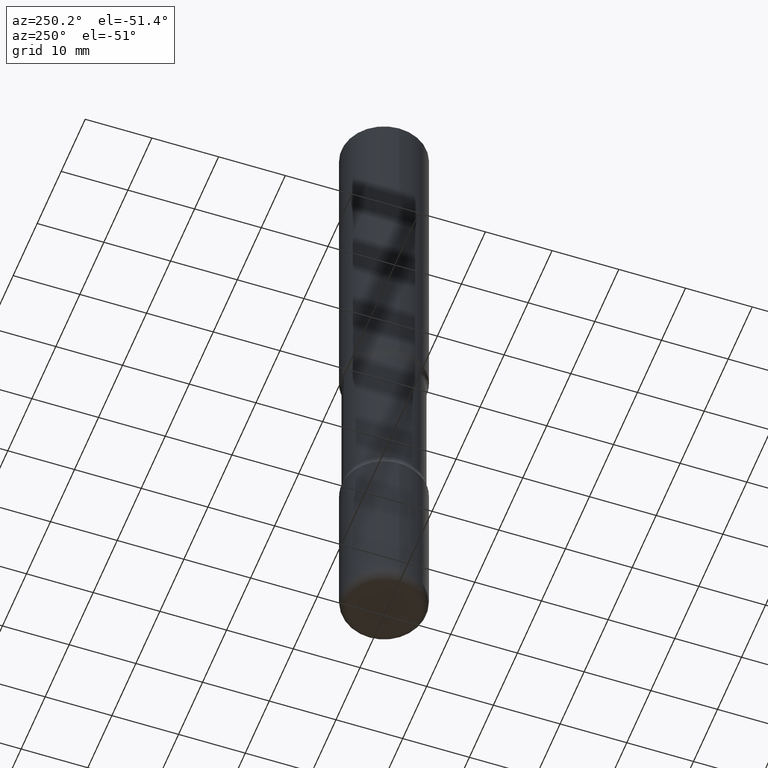
[diagram: clean part render]
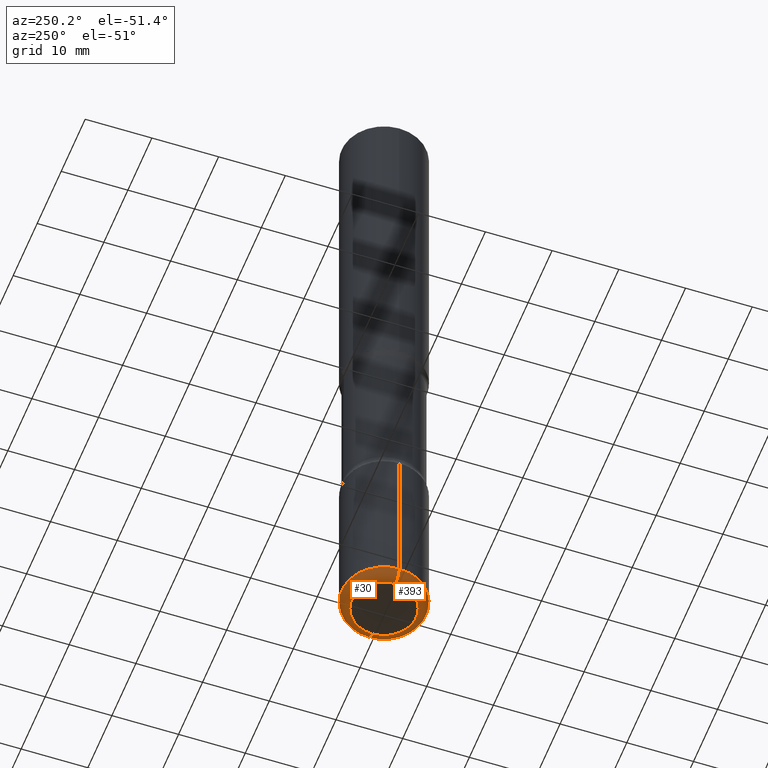
[diagram: same view with one multi-face feature highlighted, each face labeled with its STEP entity id]
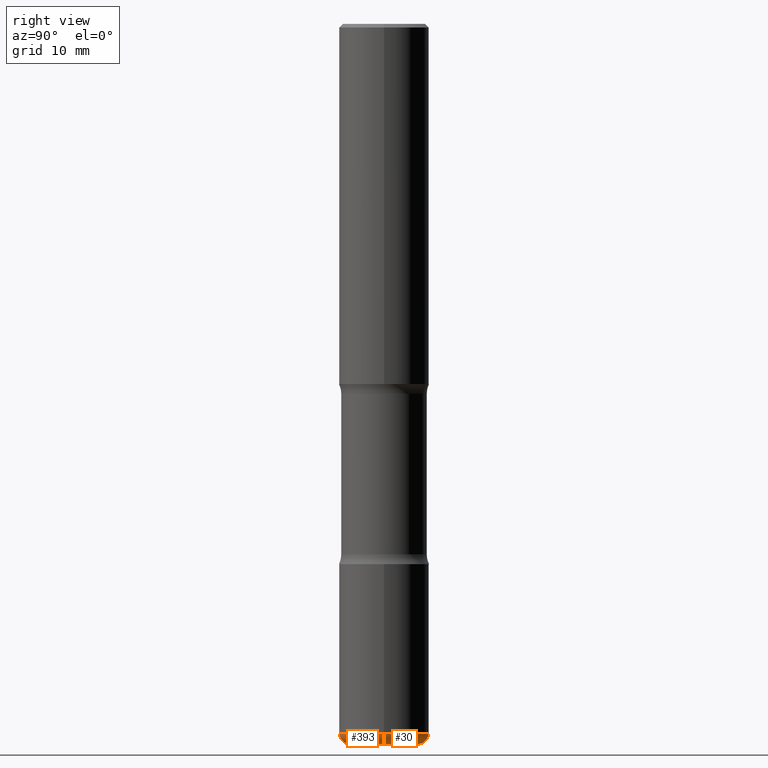
[diagram: same view with one multi-face feature highlighted, each face labeled with its STEP entity id]
A machine part, auxiliary view. The highlighted faces form ONE feature: a constant-radius fillet chain: 2 tangent blend faces with common blend radius 1.524 mm. The faces share edges in the B-rep.
A second angle (right view) of the same feature is appended — it is thin or edge-on in the first view.
Their STEP definitions:
[1] entity #30 (Torus):
#5 = EDGE_CURVE ( 'NONE', #344, #221, #487, .T. ) ;
#11 = ORIENTED_EDGE ( 'NONE', *, *, #180, .F. ) ;
#30 = ADVANCED_FACE ( 'NONE', ( #540 ), #435, .T. ) ;
#32 = DIRECTION ( 'NONE',  ( -2.445468806185136597E-29, 3.491481338843145583E-15, 1.000000000000000000 ) ) ;
#102 = AXIS2_PLACEMENT_3D ( 'NONE', #193, #498, #458 ) ;
#108 = CARTESIAN_POINT ( 'NONE',  ( 9.635147096369438236E-29, -1.375643647504199401E-14, -3.939999999999999947 ) ) ;
#140 = DIRECTION ( 'NONE',  ( 1.000000000000000000, -6.982962677686269077E-15, 4.883557194083113462E-29 ) ) ;
#143 = AXIS2_PLACEMENT_3D ( 'NONE', #394, #480, #560 ) ;
#153 = ORIENTED_EDGE ( 'NONE', *, *, #359, .T. ) ;
#180 = EDGE_CURVE ( 'NONE', #344, #373, #354, .T. ) ;
#181 = AXIS2_PLACEMENT_3D ( 'NONE', #108, #379, #140 ) ;
#182 = CIRCLE ( 'NONE', #546, 0.05999999999999997696 ) ;
#193 = CARTESIAN_POINT ( 'NONE',  ( 9.781875224740546387E-29, -1.396592535537258233E-14, -4.000000000000000000 ) ) ;
#221 = VERTEX_POINT ( 'NONE', #272 ) ;
#233 = DIRECTION ( 'NONE',  ( -1.000000000000000000, 7.105427357600993970E-15, 0.000000000000000000 ) ) ;
#246 = CARTESIAN_POINT ( 'NONE',  ( 0.1900000000000003630, -1.529268826413297711E-14, -4.000000000000000000 ) ) ;
#248 = ORIENTED_EDGE ( 'NONE', *, *, #285, .F. ) ;
#261 = EDGE_LOOP ( 'NONE', ( #404, #153, #248, #11 ) ) ;
#272 = CARTESIAN_POINT ( 'NONE',  ( -0.1900000000000003630, -1.229798689653506559E-14, -4.000000000000000000 ) ) ;
#283 = CARTESIAN_POINT ( 'NONE',  ( -0.1900000000000003630, -1.240640527709780088E-14, -3.939999999999999947 ) ) ;
#285 = EDGE_CURVE ( 'NONE', #373, #399, #330, .T. ) ;
#286 = CARTESIAN_POINT ( 'NONE',  ( 0.2500000000000003331, -1.550217714446356385E-14, -3.939999999999999947 ) ) ;
#330 = CIRCLE ( 'NONE', #488, 0.2500000000000003886 ) ;
#342 = CARTESIAN_POINT ( 'NONE',  ( 9.635147096369438236E-29, -1.375643647504199401E-14, -3.939999999999999947 ) ) ;
#344 = VERTEX_POINT ( 'NONE', #246 ) ;
#354 = CIRCLE ( 'NONE', #143, 0.05999999999999997696 ) ;
#359 = EDGE_CURVE ( 'NONE', #221, #399, #182, .T. ) ;
#373 = VERTEX_POINT ( 'NONE', #286 ) ;
#379 = DIRECTION ( 'NONE',  ( -2.445468806185136597E-29, 3.491481338843145583E-15, 1.000000000000000000 ) ) ;
#394 = CARTESIAN_POINT ( 'NONE',  ( 0.1900000000000003630, -1.508319938380238721E-14, -3.939999999999999947 ) ) ;
#399 = VERTEX_POINT ( 'NONE', #528 ) ;
#404 = ORIENTED_EDGE ( 'NONE', *, *, #5, .T. ) ;
#435 = TOROIDAL_SURFACE ( 'NONE', #181, 0.1900000000000003630, 0.05999999999999995615 ) ;
#458 = DIRECTION ( 'NONE',  ( 1.000000000000000000, -6.982962677686269077E-15, 0.000000000000000000 ) ) ;
#478 = DIRECTION ( 'NONE',  ( 1.000000000000000000, -6.982962677686267499E-15, 0.000000000000000000 ) ) ;
#480 = DIRECTION ( 'NONE',  ( -6.982962677686266711E-15, -1.000000000000000000, 3.491481338843145583E-15 ) ) ;
#487 = CIRCLE ( 'NONE', #102, 0.1900000000000003630 ) ;
#488 = AXIS2_PLACEMENT_3D ( 'NONE', #342, #32, #478 ) ;
#498 = DIRECTION ( 'NONE',  ( -2.445468806185136597E-29, 3.491481338843145583E-15, 1.000000000000000000 ) ) ;
#501 = DIRECTION ( 'NONE',  ( 7.105427357601001859E-15, 1.000000000000000000, -3.491481338843145583E-15 ) ) ;
#528 = CARTESIAN_POINT ( 'NONE',  ( -0.2500000000000003331, -1.198007963564174197E-14, -3.939999999999999947 ) ) ;
#540 = FACE_OUTER_BOUND ( 'NONE', #261, .T. ) ;
#546 = AXIS2_PLACEMENT_3D ( 'NONE', #283, #501, #233 ) ;
#560 = DIRECTION ( 'NONE',  ( 1.000000000000000000, -6.982962677686270655E-15, 0.000000000000000000 ) ) ;
[2] entity #393 (Torus):
#45 = DIRECTION ( 'NONE',  ( 1.000000000000000000, -6.982962677686269077E-15, 4.883557194083113462E-29 ) ) ;
#48 = ORIENTED_EDGE ( 'NONE', *, *, #180, .T. ) ;
#66 = AXIS2_PLACEMENT_3D ( 'NONE', #358, #89, #45 ) ;
#69 = ORIENTED_EDGE ( 'NONE', *, *, #359, .F. ) ;
#89 = DIRECTION ( 'NONE',  ( -2.445468806185136597E-29, 3.491481338843145583E-15, 1.000000000000000000 ) ) ;
#114 = CIRCLE ( 'NONE', #267, 0.2500000000000003886 ) ;
#141 = EDGE_CURVE ( 'NONE', #221, #344, #370, .T. ) ;
#143 = AXIS2_PLACEMENT_3D ( 'NONE', #394, #480, #560 ) ;
#180 = EDGE_CURVE ( 'NONE', #344, #373, #354, .T. ) ;
#182 = CIRCLE ( 'NONE', #546, 0.05999999999999997696 ) ;
#221 = VERTEX_POINT ( 'NONE', #272 ) ;
#226 = FACE_OUTER_BOUND ( 'NONE', #384, .T. ) ;
#227 = DIRECTION ( 'NONE',  ( -2.445468806185136597E-29, 3.491481338843145583E-15, 1.000000000000000000 ) ) ;
#233 = DIRECTION ( 'NONE',  ( -1.000000000000000000, 7.105427357600993970E-15, 0.000000000000000000 ) ) ;
#246 = CARTESIAN_POINT ( 'NONE',  ( 0.1900000000000003630, -1.529268826413297711E-14, -4.000000000000000000 ) ) ;
#256 = TOROIDAL_SURFACE ( 'NONE', #66, 0.1900000000000003630, 0.05999999999999995615 ) ;
#267 = AXIS2_PLACEMENT_3D ( 'NONE', #318, #227, #453 ) ;
#270 = ORIENTED_EDGE ( 'NONE', *, *, #141, .T. ) ;
#272 = CARTESIAN_POINT ( 'NONE',  ( -0.1900000000000003630, -1.229798689653506559E-14, -4.000000000000000000 ) ) ;
#283 = CARTESIAN_POINT ( 'NONE',  ( -0.1900000000000003630, -1.240640527709780088E-14, -3.939999999999999947 ) ) ;
#286 = CARTESIAN_POINT ( 'NONE',  ( 0.2500000000000003331, -1.550217714446356385E-14, -3.939999999999999947 ) ) ;
#299 = DIRECTION ( 'NONE',  ( 1.000000000000000000, -6.982962677686269077E-15, 0.000000000000000000 ) ) ;
#318 = CARTESIAN_POINT ( 'NONE',  ( 9.635147096369438236E-29, -1.375643647504199401E-14, -3.939999999999999947 ) ) ;
#344 = VERTEX_POINT ( 'NONE', #246 ) ;
#346 = CARTESIAN_POINT ( 'NONE',  ( 9.781875224740546387E-29, -1.396592535537258233E-14, -4.000000000000000000 ) ) ;
#354 = CIRCLE ( 'NONE', #143, 0.05999999999999997696 ) ;
#358 = CARTESIAN_POINT ( 'NONE',  ( 9.635147096369438236E-29, -1.375643647504199401E-14, -3.939999999999999947 ) ) ;
#359 = EDGE_CURVE ( 'NONE', #221, #399, #182, .T. ) ;
#370 = CIRCLE ( 'NONE', #554, 0.1900000000000003630 ) ;
#373 = VERTEX_POINT ( 'NONE', #286 ) ;
#384 = EDGE_LOOP ( 'NONE', ( #69, #270, #48, #463 ) ) ;
#393 = ADVANCED_FACE ( 'NONE', ( #226 ), #256, .T. ) ;
#394 = CARTESIAN_POINT ( 'NONE',  ( 0.1900000000000003630, -1.508319938380238721E-14, -3.939999999999999947 ) ) ;
#399 = VERTEX_POINT ( 'NONE', #528 ) ;
#453 = DIRECTION ( 'NONE',  ( 1.000000000000000000, -6.982962677686267499E-15, 0.000000000000000000 ) ) ;
#463 = ORIENTED_EDGE ( 'NONE', *, *, #545, .F. ) ;
#480 = DIRECTION ( 'NONE',  ( -6.982962677686266711E-15, -1.000000000000000000, 3.491481338843145583E-15 ) ) ;
#501 = DIRECTION ( 'NONE',  ( 7.105427357601001859E-15, 1.000000000000000000, -3.491481338843145583E-15 ) ) ;
#528 = CARTESIAN_POINT ( 'NONE',  ( -0.2500000000000003331, -1.198007963564174197E-14, -3.939999999999999947 ) ) ;
#545 = EDGE_CURVE ( 'NONE', #399, #373, #114, .T. ) ;
#546 = AXIS2_PLACEMENT_3D ( 'NONE', #283, #501, #233 ) ;
#554 = AXIS2_PLACEMENT_3D ( 'NONE', #346, #559, #299 ) ;
#559 = DIRECTION ( 'NONE',  ( -2.445468806185136597E-29, 3.491481338843145583E-15, 1.000000000000000000 ) ) ;
#560 = DIRECTION ( 'NONE',  ( 1.000000000000000000, -6.982962677686270655E-15, 0.000000000000000000 ) ) ;